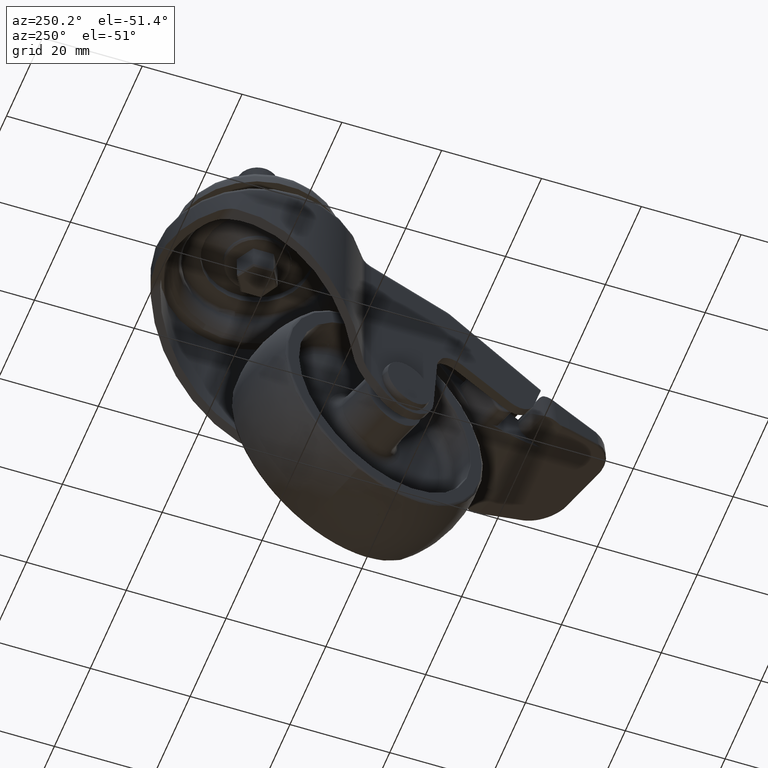
[diagram: clean part render]
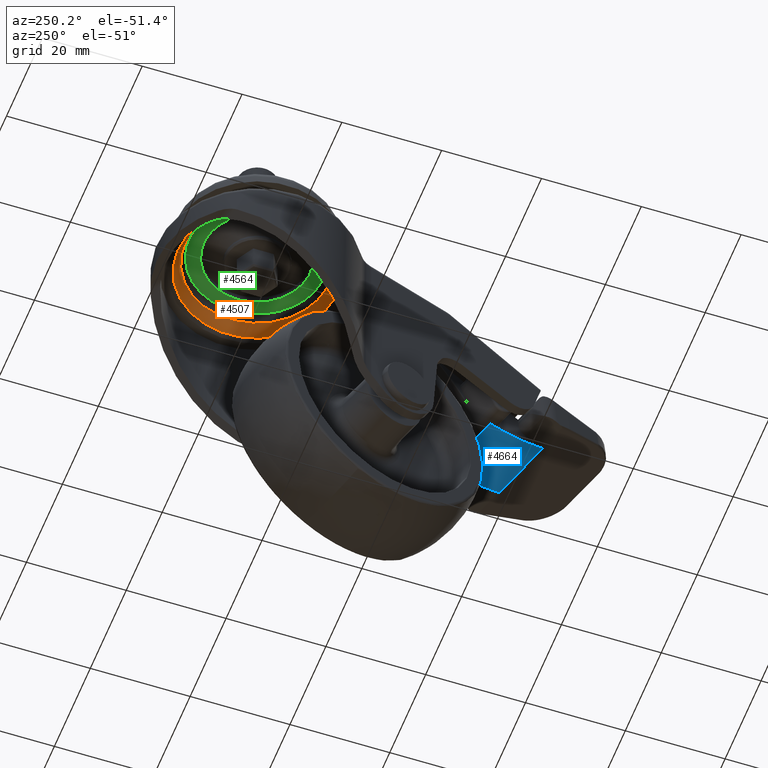
[diagram: same view with three faces highlighted in distinct colors, each labeled with its STEP entity id]
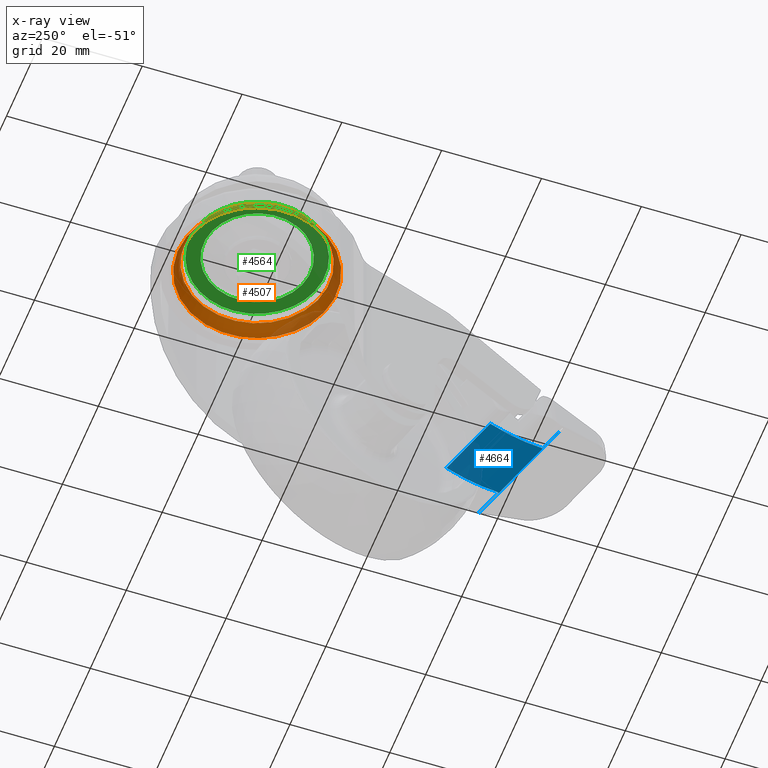
[diagram: x-ray of the same camera — body ghosted, the three highlighted faces saturated]
A machine part, auxiliary view with three faces highlighted in distinct colors.
The next image is the same camera in x-ray (body ghosted, the three faces saturated) — at least one of them is partly hidden behind the body in this view.
Their STEP definitions:

[orange] entity #4507 — the highlighted toroidal blend (fillet) surface has major radius 17.75 mm and minor (blend) radius 3.3 mm.
#1104=FACE_BOUND('',#1593,.T.);
#1148=TOROIDAL_SURFACE('',#4868,17.7499999999995,3.29999999999633);
#1246=FACE_OUTER_BOUND('',#1592,.T.);
#1592=EDGE_LOOP('',(#3310));
#1593=EDGE_LOOP('',(#3311));
#1905=CIRCLE('',#4869,15.8731386224925);
#1906=CIRCLE('',#4870,14.4500000000032);
#2118=VERTEX_POINT('',#6853);
#2119=VERTEX_POINT('',#6855);
#2571=EDGE_CURVE('',#2118,#2118,#1905,.T.);
#2572=EDGE_CURVE('',#2119,#2119,#1906,.T.);
#3310=ORIENTED_EDGE('',*,*,#2571,.T.);
#3311=ORIENTED_EDGE('',*,*,#2572,.T.);
#4507=ADVANCED_FACE('',(#1246,#1104),#1148,.T.);
#4868=AXIS2_PLACEMENT_3D('',#6852,#5522,#5523);
#4869=AXIS2_PLACEMENT_3D('',#6854,#5524,#5525);
#4870=AXIS2_PLACEMENT_3D('',#6856,#5526,#5527);
#5522=DIRECTION('center_axis',(-2.78759023323038E-17,3.63324378246998E-16,
1.));
#5523=DIRECTION('ref_axis',(1.,0.,2.10968745772043E-17));
#5524=DIRECTION('center_axis',(0.,0.,-1.));
#5525=DIRECTION('ref_axis',(-1.,0.,0.));
#5526=DIRECTION('center_axis',(0.,0.,1.));
#5527=DIRECTION('ref_axis',(1.,0.,0.));
#6852=CARTESIAN_POINT('Origin',(4.26741975090295E-15,1.22124532708767E-14,
1.49999999999429));
#6853=CARTESIAN_POINT('',(0.,15.8731386224925,-1.21429389890441));
#6854=CARTESIAN_POINT('Origin',(0.,0.,-1.21429389890441));
#6855=CARTESIAN_POINT('',(14.4500000000032,0.,1.49999999999428));
#6856=CARTESIAN_POINT('Origin',(0.,0.,1.49999999999428));

[blue] entity #4664 — the highlighted cylindrical surface (partial cylindrical patch) has radius 35 mm, axis along (-0.9516, -0.3074, -0).
#89=ELLIPSE('',#5057,32.6477632547004,28.278098115523);
#196=LINE('',#7377,#492);
#315=LINE('',#10167,#611);
#317=LINE('',#10173,#613);
#332=LINE('',#10214,#628);
#492=VECTOR('',#5835,13.5);
#611=VECTOR('',#6136,25.8014790828928);
#613=VECTOR('',#6144,6.17261567055087);
#628=VECTOR('',#6187,6.17261567055084);
#778=B_SPLINE_CURVE_WITH_KNOTS('',3,(#9784,#9785,#9786,#9787),
 .UNSPECIFIED.,.F.,.F.,(4,4),(0.,1.),.UNSPECIFIED.);
#1018=CYLINDRICAL_SURFACE('',#5100,34.9999999999999);
#1403=FACE_OUTER_BOUND('',#1778,.T.);
#1778=EDGE_LOOP('',(#4128,#4129,#4130,#4131,#4132,#4133,#4134,#4135));
#1983=CIRCLE('',#5084,34.9999999999998);
#1989=CIRCLE('',#5098,35.);
#2216=VERTEX_POINT('',#7374);
#2217=VERTEX_POINT('',#7376);
#2368=VERTEX_POINT('',#9724);
#2369=VERTEX_POINT('',#9739);
#2381=VERTEX_POINT('',#9781);
#2382=VERTEX_POINT('',#9783);
#2395=VERTEX_POINT('',#10171);
#2407=VERTEX_POINT('',#10212);
#2712=EDGE_CURVE('',#2217,#2216,#196,.T.);
#2923=EDGE_CURVE('',#2369,#2368,#89,.T.);
#2941=EDGE_CURVE('',#2382,#2381,#778,.T.);
#2970=EDGE_CURVE('',#2369,#2381,#315,.T.);
#2973=EDGE_CURVE('',#2395,#2368,#317,.T.);
#2977=EDGE_CURVE('',#2217,#2395,#1983,.T.);
#2994=EDGE_CURVE('',#2382,#2407,#332,.T.);
#2995=EDGE_CURVE('',#2216,#2407,#1989,.T.);
#4128=ORIENTED_EDGE('',*,*,#2712,.T.);
#4129=ORIENTED_EDGE('',*,*,#2995,.T.);
#4130=ORIENTED_EDGE('',*,*,#2994,.F.);
#4131=ORIENTED_EDGE('',*,*,#2941,.T.);
#4132=ORIENTED_EDGE('',*,*,#2970,.F.);
#4133=ORIENTED_EDGE('',*,*,#2923,.T.);
#4134=ORIENTED_EDGE('',*,*,#2973,.F.);
#4135=ORIENTED_EDGE('',*,*,#2977,.F.);
#4664=ADVANCED_FACE('',(#1403),#1018,.T.);
#5057=AXIS2_PLACEMENT_3D('',#9740,#6066,#6067);
#5084=AXIS2_PLACEMENT_3D('',#10180,#6150,#6151);
#5098=AXIS2_PLACEMENT_3D('',#10216,#6190,#6191);
#5100=AXIS2_PLACEMENT_3D('',#10221,#6196,#6197);
#5835=DIRECTION('',(-7.66459005542294E-18,-1.42353140882226E-18,-1.));
#6066=DIRECTION('center_axis',(-0.214474353833373,-0.159491629841135,-0.963619827296209));
#6067=DIRECTION('ref_axis',(0.773250321724896,0.575019227079171,-0.267276688922956));
#6136=DIRECTION('',(2.05541366483242E-18,-2.75749764962399E-18,-1.));
#6144=DIRECTION('',(7.66459005542294E-18,1.42353140882226E-18,1.));
#6150=DIRECTION('center_axis',(1.01043175331503E-15,-1.65703679688188E-15,
1.));
#6151=DIRECTION('ref_axis',(0.595824036095976,-0.803115009204971,-1.93496012863242E-15));
#6187=DIRECTION('',(7.66459005542294E-18,1.42353140882226E-18,1.));
#6190=DIRECTION('center_axis',(0.,0.,1.));
#6191=DIRECTION('ref_axis',(0.59582403609597,-0.803115009204976,0.));
#6196=DIRECTION('center_axis',(7.66459005542294E-18,1.42353140882226E-18,
1.));
#6197=DIRECTION('ref_axis',(1.,-1.09107846796413E-35,-7.66459005542294E-18));
#7374=CARTESIAN_POINT('',(-2.58377148641026,-7.94125395779452,-6.74999999999998));
#7376=CARTESIAN_POINT('',(-2.58377148641025,-7.94125395779452,6.74999999999999));
#7377=CARTESIAN_POINT('',(-2.58377148641024,-7.94125395779452,-4.99999999999999));
#9724=CARTESIAN_POINT('',(8.75071930501566,-2.36969189505934,12.9226156705509));
#9739=CARTESIAN_POINT('',(8.81400849080559,-2.32262754807875,12.9007395363773));
#9740=CARTESIAN_POINT('Origin',(-8.09197331848124,20.3453876048583,12.911678334191));
#9781=CARTESIAN_POINT('',(8.8140084995566,-2.32262754155582,-12.9007395465155));
#9783=CARTESIAN_POINT('',(8.75071930501565,-2.36969189505934,-12.9226156705508));
#9784=CARTESIAN_POINT('Ctrl Pts',(8.75071930501565,-2.36969189505934,-12.9226156705508));
#9785=CARTESIAN_POINT('Ctrl Pts',(8.77183341147115,-2.35402752322881,-12.915323616585));
#9786=CARTESIAN_POINT('Ctrl Pts',(8.79292986846973,-2.33833936158298,-12.9080315626191));
#9787=CARTESIAN_POINT('Ctrl Pts',(8.81400850296969,-2.32262753901174,-12.9007395618632));
#10167=CARTESIAN_POINT('',(8.81400849080558,-2.32262754807873,-4.99999999999999));
#10171=CARTESIAN_POINT('',(8.75071930501565,-2.36969189505934,6.74999999999999));
#10173=CARTESIAN_POINT('',(8.75071930501565,-2.36969189505933,-4.99999999999999));
#10180=CARTESIAN_POINT('Origin',(-12.1031219583434,25.7393334271145,6.75000000000006));
#10212=CARTESIAN_POINT('',(8.75071930501566,-2.36969189505934,-6.74999999999998));
#10214=CARTESIAN_POINT('',(8.75071930501565,-2.36969189505933,-4.99999999999999));
#10216=CARTESIAN_POINT('Origin',(-12.1031219583433,25.7393334271148,-6.74999999999998));
#10221=CARTESIAN_POINT('Origin',(-12.1031219583434,25.7393334271146,-4.99999999999999));

[green] entity #4564 — the highlighted planar face has unit normal (-0, -0, -1).
#688=B_SPLINE_CURVE_WITH_KNOTS('',3,(#6865,#6866,#6867,#6868,#6869,#6870,
#6871,#6872,#6873,#6874,#6875,#6876,#6877,#6878,#6879,#6880,#6881,#6882,
#6883,#6884,#6885,#6886,#6887,#6888,#6889,#6890,#6891,#6892,#6893,#6894,
#6895,#6896,#6897,#6898,#6899,#6900,#6901,#6902,#6903,#6904,#6905,#6906,
#6907,#6908,#6909,#6910,#6911,#6912,#6913,#6914,#6915,#6916,#6917,#6918,
#6919,#6920,#6921,#6922,#6923,#6924,#6925,#6926,#6927,#6928,#6929,#6930,
#6931,#6932,#6933,#6934,#6935,#6936,#6937,#6938,#6939,#6940,#6941,#6942,
#6943,#6944,#6945,#6946,#6947,#6948,#6949),.UNSPECIFIED.,.F.,.F.,(4,3,3,
3,3,3,3,3,3,3,3,3,3,3,3,3,3,3,3,3,3,3,3,3,3,3,3,3,4),(0.,0.0605468750000024,
0.0625000000000025,0.123046875000004,0.125000000000005,0.183593750000004,
0.187500000000004,0.250000000000004,0.308593750000004,0.312500000000004,
0.373046875000002,0.375000000000002,0.435546875000002,0.437500000000002,
0.500000000000002,0.560546875000002,0.562500000000002,0.623046875000002,
0.625000000000002,0.683593750000001,0.687500000000001,0.75,0.808593749999998,
0.812499999999998,0.873046874999998,0.874999999999998,0.935546874999999,
0.937499999999999,1.),.UNSPECIFIED.);
#689=B_SPLINE_CURVE_WITH_KNOTS('',3,(#6950,#6951,#6952,#6953,#6954,#6955,
#6956,#6957,#6958,#6959,#6960,#6961,#6962,#6963,#6964,#6965,#6966,#6967,
#6968,#6969,#6970,#6971,#6972,#6973,#6974,#6975,#6976,#6977,#6978,#6979,
#6980,#6981,#6982,#6983,#6984,#6985,#6986,#6987,#6988,#6989,#6990,#6991,
#6992,#6993,#6994,#6995,#6996,#6997,#6998,#6999,#7000,#7001,#7002,#7003,
#7004,#7005,#7006,#7007,#7008,#7009,#7010,#7011,#7012,#7013,#7014,#7015,
#7016,#7017,#7018,#7019,#7020,#7021,#7022,#7023,#7024,#7025,#7026,#7027,
#7028,#7029,#7030,#7031,#7032,#7033,#7034),.UNSPECIFIED.,.F.,.F.,(4,3,3,
3,3,3,3,3,3,3,3,3,3,3,3,3,3,3,3,3,3,3,3,3,3,3,3,3,4),(0.,0.0605468750000035,
0.0625000000000036,0.123046875000008,0.125000000000008,0.18359375000001,
0.18750000000001,0.250000000000012,0.308593750000013,0.312500000000013,
0.373046875000013,0.375000000000013,0.435546875000012,0.437500000000012,
0.500000000000011,0.560546875000009,0.562500000000009,0.623046875000008,
0.625000000000007,0.683593750000005,0.687500000000005,0.750000000000004,
0.808593750000003,0.812500000000003,0.873046875000002,0.875000000000002,
0.935546875000002,0.937500000000002,1.),.UNSPECIFIED.);
#889=PLANE('',#4984);
#1126=FACE_BOUND('',#1672,.T.);
#1303=FACE_OUTER_BOUND('',#1671,.T.);
#1671=EDGE_LOOP('',(#3585,#3586));
#1672=EDGE_LOOP('',(#3587));
#1927=CIRCLE('',#4905,10.6923505834757);
#2122=VERTEX_POINT('',#6863);
#2123=VERTEX_POINT('',#6864);
#2150=VERTEX_POINT('',#7099);
#2575=EDGE_CURVE('',#2122,#2123,#688,.T.);
#2576=EDGE_CURVE('',#2123,#2122,#689,.T.);
#2603=EDGE_CURVE('',#2150,#2150,#1927,.T.);
#3585=ORIENTED_EDGE('',*,*,#2575,.T.);
#3586=ORIENTED_EDGE('',*,*,#2576,.T.);
#3587=ORIENTED_EDGE('',*,*,#2603,.T.);
#4564=ADVANCED_FACE('',(#1303,#1126),#889,.T.);
#4905=AXIS2_PLACEMENT_3D('',#7100,#5604,#5605);
#4984=AXIS2_PLACEMENT_3D('',#7366,#5824,#5825);
#5604=DIRECTION('center_axis',(0.,0.,1.));
#5605=DIRECTION('ref_axis',(-1.,0.,0.));
#5824=DIRECTION('center_axis',(0.,0.,-1.));
#5825=DIRECTION('ref_axis',(-1.,0.,0.));
#6863=CARTESIAN_POINT('',(-13.5500000000017,1.68144005522956E-15,3.19999999999969));
#6864=CARTESIAN_POINT('',(13.5500000000017,0.,3.19999999999969));
#6865=CARTESIAN_POINT('Ctrl Pts',(-13.5500000000017,4.9335372363149E-15,
3.19999999999969));
#6866=CARTESIAN_POINT('Ctrl Pts',(-13.5500000000017,0.802712812739781,3.19999999999969));
#6867=CARTESIAN_POINT('Ctrl Pts',(-13.4792350461497,1.59909991646694,3.19999999999835));
#6868=CARTESIAN_POINT('Ctrl Pts',(-13.3377063755092,2.38916176712396,3.19999999999967));
#6869=CARTESIAN_POINT('Ctrl Pts',(-13.3331409345208,2.41464763327418,3.19999999999971));
#6870=CARTESIAN_POINT('Ctrl Pts',(-13.3287834051589,2.43860342725987,3.20000000000029));
#6871=CARTESIAN_POINT('Ctrl Pts',(-13.3237887627634,2.46559954907108,3.19999999999909));
#6872=CARTESIAN_POINT('Ctrl Pts',(-13.1689548485028,3.30247932521851,3.19999999996197));
#6873=CARTESIAN_POINT('Ctrl Pts',(-12.9372689740085,4.11760391583642,3.19999999998989));
#6874=CARTESIAN_POINT('Ctrl Pts',(-12.6287310976983,4.91097395653744,3.19999999999953));
#6875=CARTESIAN_POINT('Ctrl Pts',(-12.6187782629786,4.93656653849554,3.19999999999984));
#6876=CARTESIAN_POINT('Ctrl Pts',(-12.6091617716229,4.96108433809438,3.20000000000031));
#6877=CARTESIAN_POINT('Ctrl Pts',(-12.5986324602636,4.98768370287993,3.19999999999907));
#6878=CARTESIAN_POINT('Ctrl Pts',(-12.282753119482,5.78566464644635,3.19999999996197));
#6879=CARTESIAN_POINT('Ctrl Pts',(-11.8946487585166,6.54657614035967,3.19999999964165));
#6880=CARTESIAN_POINT('Ctrl Pts',(-11.4343186078525,7.27041825046186,3.19999999998814));
#6881=CARTESIAN_POINT('Ctrl Pts',(-11.4036299311415,7.31867439113534,3.20000000001124));
#6882=CARTESIAN_POINT('Ctrl Pts',(-11.3732693237064,7.36577629189423,3.20000000000229));
#6883=CARTESIAN_POINT('Ctrl Pts',(-11.3412909871671,7.41469334180889,3.19999999999709));
#6884=CARTESIAN_POINT('Ctrl Pts',(-10.8296376025384,8.19736614044343,3.19999999991394));
#6885=CARTESIAN_POINT('Ctrl Pts',(-10.2424958007549,8.92009796929774,3.2000000001793));
#6886=CARTESIAN_POINT('Ctrl Pts',(-9.58130959934491,9.58130959934491,3.19999999982007));
#6887=CARTESIAN_POINT('Ctrl Pts',(-8.96144753552305,10.2011955025141,3.19999999948329));
#6888=CARTESIAN_POINT('Ctrl Pts',(-8.28796035490186,10.7555610280778,3.19999999955395));
#6889=CARTESIAN_POINT('Ctrl Pts',(-7.56083293839305,11.2443960774053,3.19999999998531));
#6890=CARTESIAN_POINT('Ctrl Pts',(-7.51235777729247,11.2769850806938,3.20000000001406));
#6891=CARTESIAN_POINT('Ctrl Pts',(-7.46258096996172,11.3099804968229,3.20000000000217));
#6892=CARTESIAN_POINT('Ctrl Pts',(-7.4146933147761,11.3412909458186,3.1999999999972));
#6893=CARTESIAN_POINT('Ctrl Pts',(-6.67243465939908,11.8266029052519,3.19999999992029));
#6894=CARTESIAN_POINT('Ctrl Pts',(-5.890008994344,12.2350976143606,3.19999999998007));
#6895=CARTESIAN_POINT('Ctrl Pts',(-5.06741503100074,12.5667746533465,3.19999999999937));
#6896=CARTESIAN_POINT('Ctrl Pts',(-5.04087974186064,12.5774739126687,3.19999999999999));
#6897=CARTESIAN_POINT('Ctrl Pts',(-5.01320997273025,12.5885257082093,3.20000000000025));
#6898=CARTESIAN_POINT('Ctrl Pts',(-4.98768368761927,12.5986324217159,3.19999999999911));
#6899=CARTESIAN_POINT('Ctrl Pts',(-4.19636884917876,12.9119405404224,3.19999999996373));
#6900=CARTESIAN_POINT('Ctrl Pts',(-3.38266818203906,13.1485787955148,3.1999999999908));
#6901=CARTESIAN_POINT('Ctrl Pts',(-2.54658113905415,13.3085475598565,3.19999999999954));
#6902=CARTESIAN_POINT('Ctrl Pts',(-2.51961058928044,13.3137078425773,3.19999999999982));
#6903=CARTESIAN_POINT('Ctrl Pts',(-2.49105564788818,13.3190769940298,3.20000000000022));
#6904=CARTESIAN_POINT('Ctrl Pts',(-2.46559953847684,13.3237887055136,3.19999999999915));
#6905=CARTESIAN_POINT('Ctrl Pts',(-1.65100403731398,13.4745634729944,3.19999999996501));
#6906=CARTESIAN_POINT('Ctrl Pts',(-0.828432494852468,13.5499999999431,3.2000000001411));
#6907=CARTESIAN_POINT('Ctrl Pts',(-9.19299751459556E-16,13.5500159548744,
3.19999999985826));
#6908=CARTESIAN_POINT('Ctrl Pts',(0.802543979388327,13.550031411214,3.19999999958426));
#6909=CARTESIAN_POINT('Ctrl Pts',(1.59892483432882,13.4792674384696,3.19999999999736));
#6910=CARTESIAN_POINT('Ctrl Pts',(2.38914584502002,13.3377092902383,3.19999999999965));
#6911=CARTESIAN_POINT('Ctrl Pts',(2.41463684536489,13.3331428983599,3.19999999999972));
#6912=CARTESIAN_POINT('Ctrl Pts',(2.4386034272594,13.328783405159,3.20000000000028));
#6913=CARTESIAN_POINT('Ctrl Pts',(2.46559954907107,13.3237887627634,3.19999999999908));
#6914=CARTESIAN_POINT('Ctrl Pts',(3.30247932523278,13.1689548485002,3.19999999996197));
#6915=CARTESIAN_POINT('Ctrl Pts',(4.11760391585115,12.9372689740057,3.19999999998988));
#6916=CARTESIAN_POINT('Ctrl Pts',(4.91097395653871,12.6287310976979,3.19999999999953));
#6917=CARTESIAN_POINT('Ctrl Pts',(4.93656653849637,12.6187782629782,3.19999999999984));
#6918=CARTESIAN_POINT('Ctrl Pts',(4.96108433809415,12.609161771623,3.2000000000003));
#6919=CARTESIAN_POINT('Ctrl Pts',(4.98768370287989,12.5986324602635,3.19999999999906));
#6920=CARTESIAN_POINT('Ctrl Pts',(5.78566464645217,12.2827531194767,3.19999999996197));
#6921=CARTESIAN_POINT('Ctrl Pts',(6.54657614036586,11.8946487585109,3.19999999964165));
#6922=CARTESIAN_POINT('Ctrl Pts',(7.27041825046304,11.4343186078516,3.19999999998813));
#6923=CARTESIAN_POINT('Ctrl Pts',(7.31867439113619,11.403629931141,3.20000000001123));
#6924=CARTESIAN_POINT('Ctrl Pts',(7.36577629189511,11.3732693237058,3.20000000000228));
#6925=CARTESIAN_POINT('Ctrl Pts',(7.41469334180893,11.3412909871672,3.19999999999708));
#6926=CARTESIAN_POINT('Ctrl Pts',(8.19736614042998,10.8296376025488,3.19999999991393));
#6927=CARTESIAN_POINT('Ctrl Pts',(8.92009796928848,10.2424958007642,3.2000000001793));
#6928=CARTESIAN_POINT('Ctrl Pts',(9.58130959934564,9.58130959934564,3.19999999982007));
#6929=CARTESIAN_POINT('Ctrl Pts',(10.2011955025242,8.96144753551577,3.19999999948329));
#6930=CARTESIAN_POINT('Ctrl Pts',(10.7555610280885,8.28796035489415,3.19999999955395));
#6931=CARTESIAN_POINT('Ctrl Pts',(11.2443960774068,7.56083293839141,3.1999999999853));
#6932=CARTESIAN_POINT('Ctrl Pts',(11.2769850806947,7.51235777729123,3.20000000001406));
#6933=CARTESIAN_POINT('Ctrl Pts',(11.3099804968228,7.46258096996187,3.20000000000217));
#6934=CARTESIAN_POINT('Ctrl Pts',(11.3412909458184,7.41469331477596,3.1999999999972));
#6935=CARTESIAN_POINT('Ctrl Pts',(11.8266029052496,6.67243465939439,3.19999999992029));
#6936=CARTESIAN_POINT('Ctrl Pts',(12.2350976143583,5.89000899433917,3.19999999998008));
#6937=CARTESIAN_POINT('Ctrl Pts',(12.5667746533465,5.06741503100039,3.19999999999937));
#6938=CARTESIAN_POINT('Ctrl Pts',(12.5774739126688,5.04087974186043,3.2));
#6939=CARTESIAN_POINT('Ctrl Pts',(12.5885257082094,5.01320997272988,3.20000000000026));
#6940=CARTESIAN_POINT('Ctrl Pts',(12.5986324217161,4.98768368761932,3.19999999999911));
#6941=CARTESIAN_POINT('Ctrl Pts',(12.9119405404212,4.19636884919176,3.19999999996373));
#6942=CARTESIAN_POINT('Ctrl Pts',(13.1485787955136,3.38266818205247,3.1999999999908));
#6943=CARTESIAN_POINT('Ctrl Pts',(13.3085475598564,2.54658113905535,3.19999999999954));
#6944=CARTESIAN_POINT('Ctrl Pts',(13.3137078425771,2.51961058928125,3.19999999999983));
#6945=CARTESIAN_POINT('Ctrl Pts',(13.3190759801205,2.4910611269264,3.20000000000022));
#6946=CARTESIAN_POINT('Ctrl Pts',(13.3237887057209,2.46559953851522,3.19999999999915));
#6947=CARTESIAN_POINT('Ctrl Pts',(13.4745959249359,1.65082870935742,3.199999999965));
#6948=CARTESIAN_POINT('Ctrl Pts',(13.5500000000017,0.828962314890478,3.19999999999969));
#6949=CARTESIAN_POINT('Ctrl Pts',(13.5500000000017,4.58788560227314E-26,
3.19999999999969));
#6950=CARTESIAN_POINT('Ctrl Pts',(13.5500000000017,-2.78149568565576E-15,
3.19999999999968));
#6951=CARTESIAN_POINT('Ctrl Pts',(13.5500000000017,-0.802712812721258,3.19999999999968));
#6952=CARTESIAN_POINT('Ctrl Pts',(13.4792350461497,-1.59909991644783,3.19999999999834));
#6953=CARTESIAN_POINT('Ctrl Pts',(13.3377063755094,-2.38916176712225,3.19999999999966));
#6954=CARTESIAN_POINT('Ctrl Pts',(13.333140934521,-2.41464763327303,3.19999999999971));
#6955=CARTESIAN_POINT('Ctrl Pts',(13.328783405159,-2.43860342725966,3.20000000000028));
#6956=CARTESIAN_POINT('Ctrl Pts',(13.3237887627635,-2.46559954907109,3.19999999999909));
#6957=CARTESIAN_POINT('Ctrl Pts',(13.1689548485052,-3.3024793252255,3.19999999996197));
#6958=CARTESIAN_POINT('Ctrl Pts',(12.9372689740109,-4.11760391584365,3.19999999998989));
#6959=CARTESIAN_POINT('Ctrl Pts',(12.6287310976982,-4.91097395653799,3.19999999999953));
#6960=CARTESIAN_POINT('Ctrl Pts',(12.6187782629784,-4.93656653849588,3.19999999999984));
#6961=CARTESIAN_POINT('Ctrl Pts',(12.6091617716232,-4.96108433809375,3.2000000000003));
#6962=CARTESIAN_POINT('Ctrl Pts',(12.5986324602634,-4.98768370287988,3.19999999999907));
#6963=CARTESIAN_POINT('Ctrl Pts',(12.28275311947,-5.78566464646363,3.19999999996197));
#6964=CARTESIAN_POINT('Ctrl Pts',(11.8946487585038,-6.54657614037806,3.19999999964165));
#6965=CARTESIAN_POINT('Ctrl Pts',(11.4343186078503,-7.27041825046515,3.19999999998814));
#6966=CARTESIAN_POINT('Ctrl Pts',(11.40362993114,-7.31867439113763,3.20000000001124));
#6967=CARTESIAN_POINT('Ctrl Pts',(11.3732693237058,-7.3657762918952,3.20000000000229));
#6968=CARTESIAN_POINT('Ctrl Pts',(11.3412909871672,-7.41469334180891,3.19999999999709));
#6969=CARTESIAN_POINT('Ctrl Pts',(10.8296376025491,-8.19736614042818,3.19999999991394));
#6970=CARTESIAN_POINT('Ctrl Pts',(10.2424958007478,-8.92009796930482,3.2000000001793));
#6971=CARTESIAN_POINT('Ctrl Pts',(9.581309599346,-9.58130959934601,3.19999999982007));
#6972=CARTESIAN_POINT('Ctrl Pts',(8.9614475355318,-10.2011955025096,3.1999999994833));
#6973=CARTESIAN_POINT('Ctrl Pts',(8.28796035491122,-10.7555610280729,3.19999999955395));
#6974=CARTESIAN_POINT('Ctrl Pts',(7.56083293839464,-11.2443960774044,3.19999999998531));
#6975=CARTESIAN_POINT('Ctrl Pts',(7.51235777729354,-11.2769850806931,3.20000000001407));
#6976=CARTESIAN_POINT('Ctrl Pts',(7.46258096996202,-11.3099804968227,3.20000000000217));
#6977=CARTESIAN_POINT('Ctrl Pts',(7.41469331477607,-11.3412909458186,3.19999999999721));
#6978=CARTESIAN_POINT('Ctrl Pts',(6.67243465939385,-11.8266029052541,3.1999999999203));
#6979=CARTESIAN_POINT('Ctrl Pts',(5.89000899433859,-12.2350976143629,3.19999999998008));
#6980=CARTESIAN_POINT('Ctrl Pts',(5.06741503100025,-12.5667746533467,3.19999999999938));
#6981=CARTESIAN_POINT('Ctrl Pts',(5.04087974186031,-12.5774739126688,3.2));
#6982=CARTESIAN_POINT('Ctrl Pts',(5.01320997273056,-12.5885257082092,3.20000000000026));
#6983=CARTESIAN_POINT('Ctrl Pts',(4.98768368761928,-12.5986324217159,3.19999999999912));
#6984=CARTESIAN_POINT('Ctrl Pts',(4.19636884916973,-12.9119405404258,3.19999999996374));
#6985=CARTESIAN_POINT('Ctrl Pts',(3.38266818202973,-13.1485787955183,3.19999999999081));
#6986=CARTESIAN_POINT('Ctrl Pts',(2.54658113905328,-13.3085475598568,3.19999999999955));
#6987=CARTESIAN_POINT('Ctrl Pts',(2.51961058927985,-13.3137078425774,3.19999999999983));
#6988=CARTESIAN_POINT('Ctrl Pts',(2.49105564788801,-13.3190769940299,3.20000000000022));
#6989=CARTESIAN_POINT('Ctrl Pts',(2.46559953847684,-13.3237887055136,3.19999999999916));
#6990=CARTESIAN_POINT('Ctrl Pts',(1.65100403731938,-13.4745634729917,3.19999999996502));
#6991=CARTESIAN_POINT('Ctrl Pts',(0.828432494833315,-13.5499999999431,3.20000000014111));
#6992=CARTESIAN_POINT('Ctrl Pts',(-1.14775828305736E-15,-13.5500159548757,
3.19999999985827));
#6993=CARTESIAN_POINT('Ctrl Pts',(-0.802543979369778,-13.5500314112166,
3.19999999958427));
#6994=CARTESIAN_POINT('Ctrl Pts',(-1.5989248343096,-13.4792674384723,3.19999999999737));
#6995=CARTESIAN_POINT('Ctrl Pts',(-2.38914584501829,-13.3377092902386,3.19999999999965));
#6996=CARTESIAN_POINT('Ctrl Pts',(-2.41463684536373,-13.3331428983601,3.19999999999973));
#6997=CARTESIAN_POINT('Ctrl Pts',(-2.43860342725961,-13.328783405159,3.20000000000029));
#6998=CARTESIAN_POINT('Ctrl Pts',(-2.46559954907108,-13.3237887627635,3.19999999999909));
#6999=CARTESIAN_POINT('Ctrl Pts',(-3.30247932522653,-13.1689548485022,3.19999999996198));
#7000=CARTESIAN_POINT('Ctrl Pts',(-4.11760391584468,-12.9372689740078,3.19999999998989));
#7001=CARTESIAN_POINT('Ctrl Pts',(-4.91097395653814,-12.6287310976981,3.19999999999953));
#7002=CARTESIAN_POINT('Ctrl Pts',(-4.93656653849599,-12.6187782629784,3.19999999999985));
#7003=CARTESIAN_POINT('Ctrl Pts',(-4.96108433809412,-12.6091617716231,3.20000000000031));
#7004=CARTESIAN_POINT('Ctrl Pts',(-4.9876837028799,-12.5986324602635,3.19999999999907));
#7005=CARTESIAN_POINT('Ctrl Pts',(-5.78566464645356,-12.2827531194766,3.19999999996198));
#7006=CARTESIAN_POINT('Ctrl Pts',(-6.54657614036734,-11.8946487585108,3.19999999964166));
#7007=CARTESIAN_POINT('Ctrl Pts',(-7.27041825046325,-11.4343186078515,3.19999999998814));
#7008=CARTESIAN_POINT('Ctrl Pts',(-7.31867439113632,-11.4036299311409,3.20000000001124));
#7009=CARTESIAN_POINT('Ctrl Pts',(-7.36577629189493,-11.373269323706,3.20000000000229));
#7010=CARTESIAN_POINT('Ctrl Pts',(-7.4146933418089,-11.3412909871672,3.19999999999709));
#7011=CARTESIAN_POINT('Ctrl Pts',(-8.19736614043253,-10.8296376025463,3.19999999991394));
#7012=CARTESIAN_POINT('Ctrl Pts',(-8.92009796930345,-10.2424958007492,3.2000000001793));
#7013=CARTESIAN_POINT('Ctrl Pts',(-9.58130959934564,-9.58130959934564,3.19999999982008));
#7014=CARTESIAN_POINT('Ctrl Pts',(-10.2011955025102,-8.96144753552981,3.1999999994833));
#7015=CARTESIAN_POINT('Ctrl Pts',(-10.7555610280736,-8.28796035490906,3.19999999955395));
#7016=CARTESIAN_POINT('Ctrl Pts',(-11.2443960774045,-7.5608329383943,3.19999999998531));
#7017=CARTESIAN_POINT('Ctrl Pts',(-11.2769850806933,-7.51235777729332,3.20000000001407));
#7018=CARTESIAN_POINT('Ctrl Pts',(-11.3099804968234,-7.46258096996104,3.20000000000217));
#7019=CARTESIAN_POINT('Ctrl Pts',(-11.3412909458186,-7.4146933147761,3.19999999999721));
#7020=CARTESIAN_POINT('Ctrl Pts',(-11.8266029052446,-6.67243465940949,3.19999999992029));
#7021=CARTESIAN_POINT('Ctrl Pts',(-12.2350976143532,-5.89000899435472,3.19999999998008));
#7022=CARTESIAN_POINT('Ctrl Pts',(-12.566774653346,-5.06741503100178,3.19999999999937));
#7023=CARTESIAN_POINT('Ctrl Pts',(-12.5774739126684,-5.04087974186136,3.2));
#7024=CARTESIAN_POINT('Ctrl Pts',(-12.5885257082095,-5.01320997272977,3.20000000000026));
#7025=CARTESIAN_POINT('Ctrl Pts',(-12.598632421716,-4.9876836876193,3.19999999999912));
#7026=CARTESIAN_POINT('Ctrl Pts',(-12.911940540419,-4.19636884919481,3.19999999996374));
#7027=CARTESIAN_POINT('Ctrl Pts',(-13.1485787955113,-3.38266818205563,3.19999999999081));
#7028=CARTESIAN_POINT('Ctrl Pts',(-13.3085475598563,-2.54658113905567,3.19999999999954));
#7029=CARTESIAN_POINT('Ctrl Pts',(-13.3137078425771,-2.51961058928147,3.19999999999983));
#7030=CARTESIAN_POINT('Ctrl Pts',(-13.3190759801205,-2.49106112692614,3.20000000000022));
#7031=CARTESIAN_POINT('Ctrl Pts',(-13.323788705721,-2.46559953851523,3.19999999999915));
#7032=CARTESIAN_POINT('Ctrl Pts',(-13.4745959249359,-1.65082870936594,3.199999999965));
#7033=CARTESIAN_POINT('Ctrl Pts',(-13.5500000000017,-0.828962314899034,
3.19999999999968));
#7034=CARTESIAN_POINT('Ctrl Pts',(-13.5500000000017,4.30683964965649E-15,
3.19999999999968));
#7099=CARTESIAN_POINT('',(-10.6923505834757,0.,3.19999999999969));
#7100=CARTESIAN_POINT('Origin',(0.,0.,3.19999999999969));
#7366=CARTESIAN_POINT('Origin',(-10.5000000000017,0.,3.19999999999969));